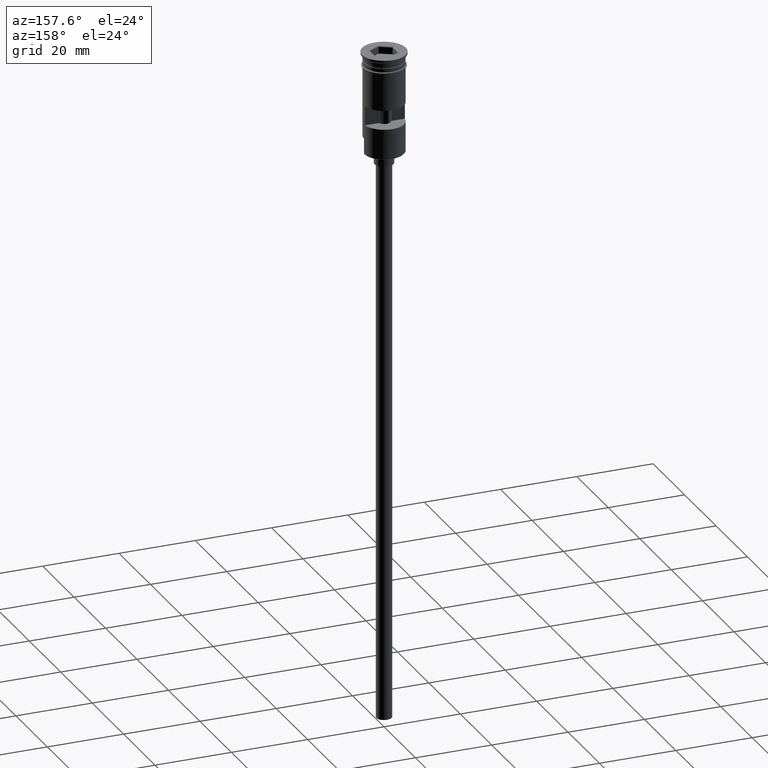
[diagram: clean part render]
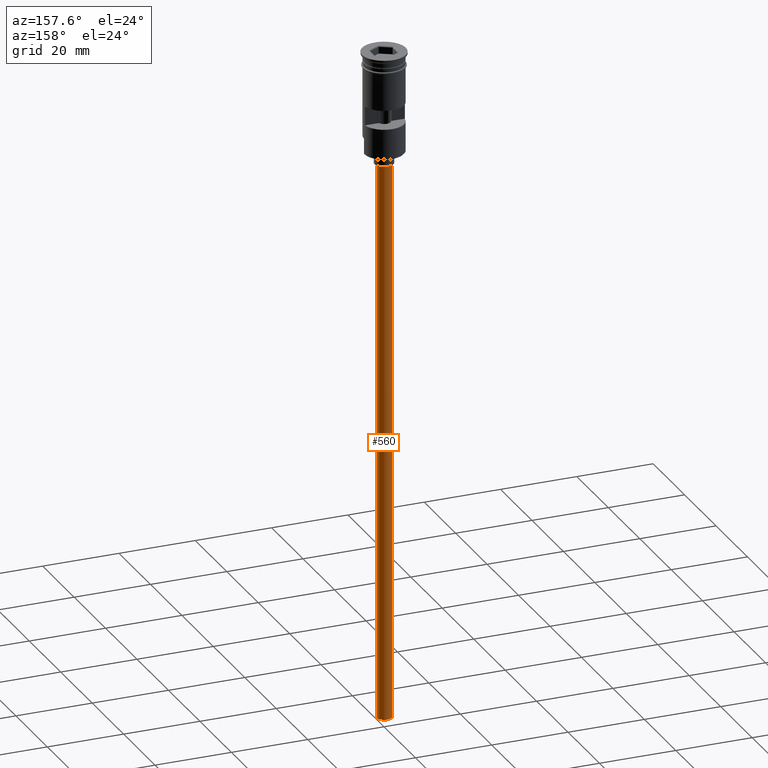
[diagram: same view with one face highlighted and labeled with its STEP entity id]
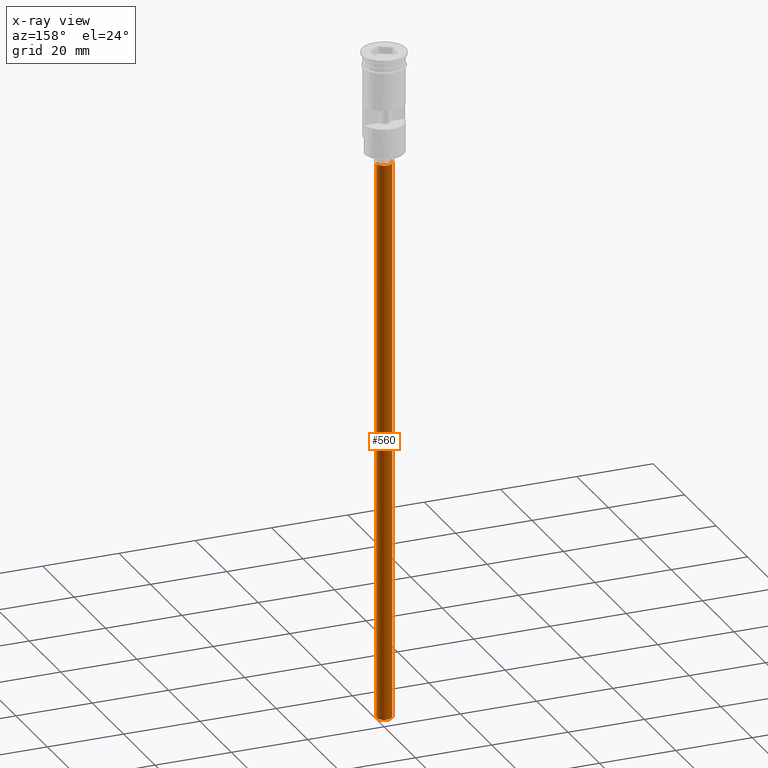
[diagram: x-ray of the same camera — body ghosted, the highlighted face saturated]
A machine part, auxiliary view. The second image highlights one B-rep face of the part: STEP entity #560.
The next image is the same camera in x-ray: the body ghosted, the highlighted face saturated — about 0% of this face is hidden behind the body in this view.
In plain terms, the highlighted cylindrical surface (edge-blend (fillet) strip) has radius 2 mm, axis along (-0, -0, 1).
Its self-contained STEP definition (entity closure, byte-faithful):
#23 = CARTESIAN_POINT ( 'NONE',  ( 2.000000000000000000, 0.000000000000000000, -176.5000000000000000 ) ) ;
#44 = AXIS2_PLACEMENT_3D ( 'NONE', #1147, #1125, #160 ) ;
#134 = CARTESIAN_POINT ( 'NONE',  ( 2.000000000000000000, 0.000000000000000000, -29.50000000000000000 ) ) ;
#144 = ORIENTED_EDGE ( 'NONE', *, *, #450, .T. ) ;
#147 = EDGE_CURVE ( 'NONE', #1117, #1188, #1041, .T. ) ;
#160 = DIRECTION ( 'NONE',  ( -1.000000000000000000, 0.000000000000000000, 0.000000000000000000 ) ) ;
#164 = DIRECTION ( 'NONE',  ( -1.000000000000000000, 0.000000000000000000, 0.000000000000000000 ) ) ;
#168 = CARTESIAN_POINT ( 'NONE',  ( -2.000000000000000000, 2.449293598294706414E-16, -176.5000000000000000 ) ) ;
#171 = EDGE_LOOP ( 'NONE', ( #304, #144, #602, #594 ) ) ;
#253 = AXIS2_PLACEMENT_3D ( 'NONE', #1161, #817, #416 ) ;
#304 = ORIENTED_EDGE ( 'NONE', *, *, #147, .F. ) ;
#327 = FACE_OUTER_BOUND ( 'NONE', #171, .T. ) ;
#363 = DIRECTION ( 'NONE',  ( -0.000000000000000000, -0.000000000000000000, 1.000000000000000000 ) ) ;
#402 = DIRECTION ( 'NONE',  ( 0.000000000000000000, 0.000000000000000000, -1.000000000000000000 ) ) ;
#416 = DIRECTION ( 'NONE',  ( 1.000000000000000000, 0.000000000000000000, 0.000000000000000000 ) ) ;
#450 = EDGE_CURVE ( 'NONE', #1117, #1463, #1025, .T. ) ;
#480 = CARTESIAN_POINT ( 'NONE',  ( -2.000000000000000000, 2.449293598294706414E-16, -176.5000000000000000 ) ) ;
#529 = DIRECTION ( 'NONE',  ( -0.000000000000000000, -0.000000000000000000, 1.000000000000000000 ) ) ;
#560 = ADVANCED_FACE ( 'NONE', ( #327 ), #657, .T. ) ;
#594 = ORIENTED_EDGE ( 'NONE', *, *, #755, .F. ) ;
#602 = ORIENTED_EDGE ( 'NONE', *, *, #1385, .T. ) ;
#624 = VECTOR ( 'NONE', #529, 1000.000000000000000 ) ;
#657 = CYLINDRICAL_SURFACE ( 'NONE', #253, 2.000000000000000000 ) ;
#745 = CARTESIAN_POINT ( 'NONE',  ( 2.000000000000000000, 0.000000000000000000, -176.5000000000000000 ) ) ;
#755 = EDGE_CURVE ( 'NONE', #1188, #818, #1489, .T. ) ;
#786 = CIRCLE ( 'NONE', #1001, 2.000000000000000000 ) ;
#817 = DIRECTION ( 'NONE',  ( -0.000000000000000000, -0.000000000000000000, 1.000000000000000000 ) ) ;
#818 = VERTEX_POINT ( 'NONE', #134 ) ;
#1001 = AXIS2_PLACEMENT_3D ( 'NONE', #1522, #402, #164 ) ;
#1025 = LINE ( 'NONE', #168, #624 ) ;
#1041 = CIRCLE ( 'NONE', #44, 2.000000000000000000 ) ;
#1117 = VERTEX_POINT ( 'NONE', #480 ) ;
#1125 = DIRECTION ( 'NONE',  ( 0.000000000000000000, 0.000000000000000000, -1.000000000000000000 ) ) ;
#1147 = CARTESIAN_POINT ( 'NONE',  ( 0.000000000000000000, 0.000000000000000000, -176.5000000000000000 ) ) ;
#1161 = CARTESIAN_POINT ( 'NONE',  ( 0.000000000000000000, 0.000000000000000000, -176.5000000000000000 ) ) ;
#1188 = VERTEX_POINT ( 'NONE', #745 ) ;
#1213 = CARTESIAN_POINT ( 'NONE',  ( -2.000000000000000000, 2.449293598294706414E-16, -29.50000000000000000 ) ) ;
#1385 = EDGE_CURVE ( 'NONE', #1463, #818, #786, .T. ) ;
#1463 = VERTEX_POINT ( 'NONE', #1213 ) ;
#1489 = LINE ( 'NONE', #23, #1519 ) ;
#1519 = VECTOR ( 'NONE', #363, 1000.000000000000000 ) ;
#1522 = CARTESIAN_POINT ( 'NONE',  ( 0.000000000000000000, 0.000000000000000000, -29.50000000000000000 ) ) ;